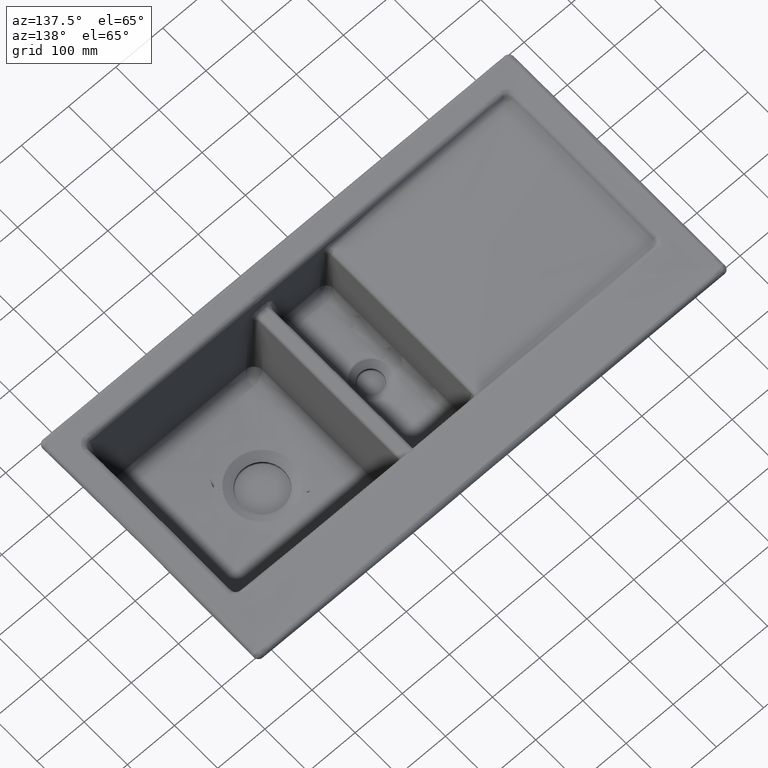
[diagram: clean part render]
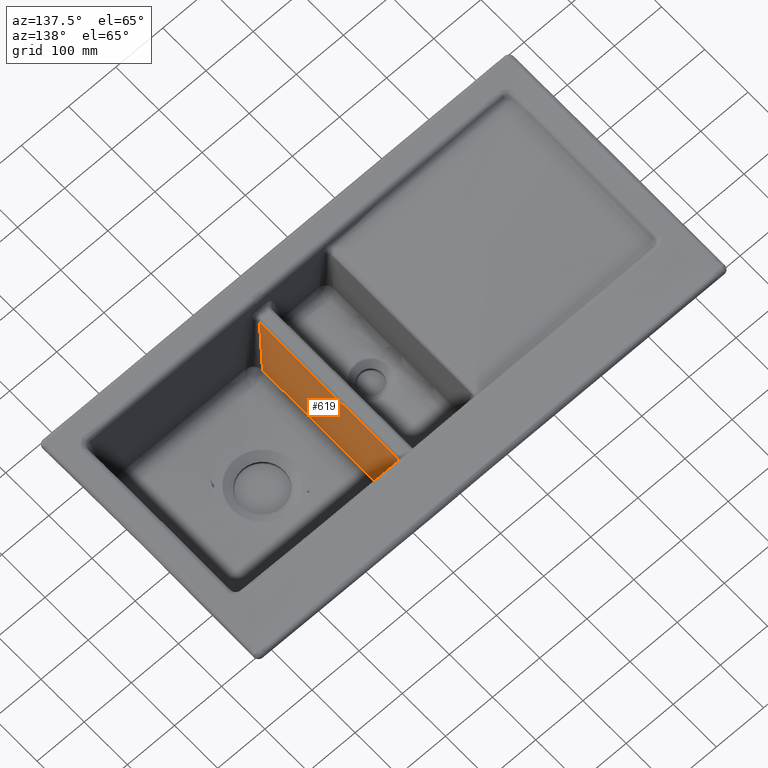
[diagram: same view with one face highlighted and labeled with its STEP entity id]
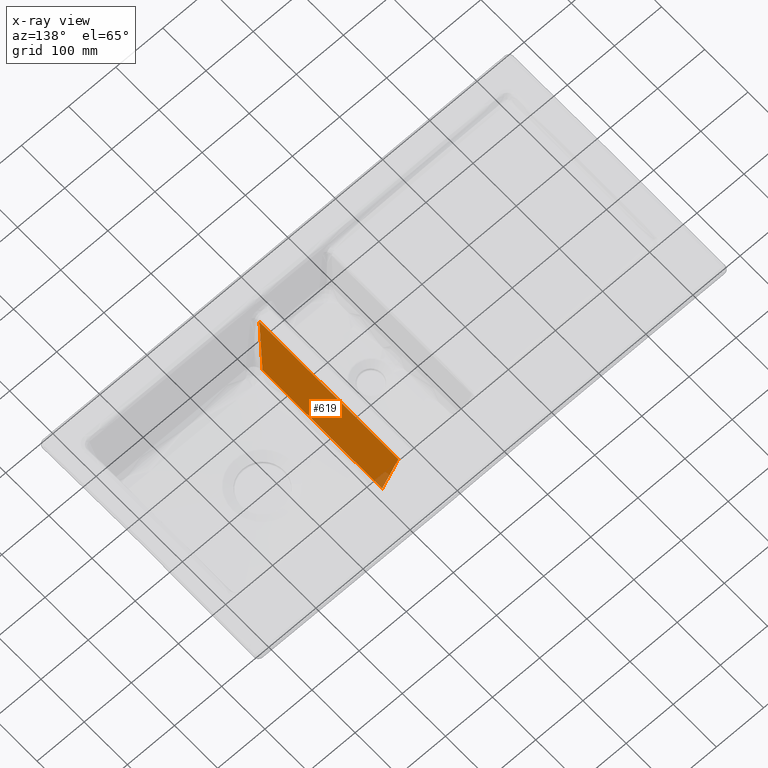
[diagram: x-ray of the same camera — body ghosted, the highlighted face saturated]
A machine part, auxiliary view. The second image highlights one B-rep face of the part: STEP entity #619.
The next image is the same camera in x-ray: the body ghosted, the highlighted face saturated — about 2% of this face is hidden behind the body in this view.
In plain terms, the highlighted planar face has unit normal (0.9945, 0, 0.1046).
Its self-contained STEP definition (entity closure, byte-faithful):
#64=LINE('',#8662,#82);
#65=LINE('',#8708,#83);
#66=LINE('',#8744,#84);
#82=VECTOR('',#6340,1.);
#83=VECTOR('',#6341,1.);
#84=VECTOR('',#6342,1.);
#141=PLANE('',#6174);
#619=ADVANCED_FACE('',(#1133),#141,.T.);
#1133=FACE_OUTER_BOUND('',#1532,.T.);
#1532=EDGE_LOOP('',(#2083,#2084,#2085,#2086,#2087,#2088));
#2083=ORIENTED_EDGE('',*,*,#4511,.T.);
#2084=ORIENTED_EDGE('',*,*,#4516,.T.);
#2085=ORIENTED_EDGE('',*,*,#4519,.T.);
#2086=ORIENTED_EDGE('',*,*,#4545,.F.);
#2087=ORIENTED_EDGE('',*,*,#4546,.F.);
#2088=ORIENTED_EDGE('',*,*,#4547,.F.);
#3906=VERTEX_POINT('',#8663);
#3907=VERTEX_POINT('',#8664);
#3909=VERTEX_POINT('',#8707);
#3911=VERTEX_POINT('',#8743);
#3927=VERTEX_POINT('',#9921);
#3928=VERTEX_POINT('',#9926);
#4511=EDGE_CURVE('',#3906,#3907,#64,.T.);
#4516=EDGE_CURVE('',#3907,#3909,#65,.T.);
#4519=EDGE_CURVE('',#3909,#3911,#66,.T.);
#4545=EDGE_CURVE('',#3927,#3911,#5479,.T.);
#4546=EDGE_CURVE('',#3928,#3927,#5480,.T.);
#4547=EDGE_CURVE('',#3906,#3928,#5481,.T.);
#5479=B_SPLINE_CURVE_WITH_KNOTS('',3,(#9917,#9918,#9919,#9920),
 .UNSPECIFIED.,.F.,.F.,(4,4),(0.,1.),.UNSPECIFIED.);
#5480=B_SPLINE_CURVE_WITH_KNOTS('',3,(#9922,#9923,#9924,#9925),
 .UNSPECIFIED.,.F.,.F.,(4,4),(0.,1.),.UNSPECIFIED.);
#5481=B_SPLINE_CURVE_WITH_KNOTS('',3,(#9927,#9928,#9929,#9930),
 .UNSPECIFIED.,.F.,.F.,(4,4),(0.,1.),.UNSPECIFIED.);
#6174=AXIS2_PLACEMENT_3D('',#9931,#6347,#6348);
#6340=DIRECTION('',(5.99029534644888E-5,0.999999835997403,-0.000569575984965933));
#6341=DIRECTION('',(5.99029534756079E-5,0.999999835997403,-0.000569575984953627));
#6342=DIRECTION('',(5.99029534644888E-5,0.999999835997403,-0.000569575984965933));
#6347=DIRECTION('',(0.994514976599627,0.,0.10459427001057));
#6348=DIRECTION('',(0.104199146335489,-0.086839443821827,-0.990758017327981));
#8662=CARTESIAN_POINT('',(104.075501914323,-5.98422724095791,-173.051583165526));
#8663=CARTESIAN_POINT('',(104.067630766378,-137.382533605321,-172.976741833269));
#8664=CARTESIAN_POINT('',(104.071120894094,-79.1195111693656,-173.009927057315));
#8707=CARTESIAN_POINT('',(104.080813212946,82.6808125389923,-173.102084651173));
#8708=CARTESIAN_POINT('',(104.07596705352,1.78065068481106,-173.056005854244));
#8743=CARTESIAN_POINT('',(104.084225954999,139.651983763955,-173.134534068174));
#8744=CARTESIAN_POINT('',(104.075501914323,-5.98422724095791,-173.051583165526));
#9917=CARTESIAN_POINT('',(90.8356824493695,162.788673432688,-47.1632458403535));
#9918=CARTESIAN_POINT('',(95.4438536388131,154.659244007978,-90.9791763131538));
#9919=CARTESIAN_POINT('',(99.8600348074782,146.947014118344,-132.969605723586));
#9920=CARTESIAN_POINT('',(104.084225955365,139.651983763785,-173.134534071652));
#9921=CARTESIAN_POINT('',(90.835674056923,162.788695732665,-47.1631660501734));
#9922=CARTESIAN_POINT('',(90.8356824493731,-158.956033427536,-47.163245840387));
#9923=CARTESIAN_POINT('',(90.8356824493731,-51.7077978074611,-47.163245840387));
#9924=CARTESIAN_POINT('',(90.8356824493731,55.5404378126135,-47.163245840387));
#9925=CARTESIAN_POINT('',(90.8356824493731,162.788673432688,-47.163245840387));
#9926=CARTESIAN_POINT('',(90.8356824553568,-158.95603341778,-47.1632458972817));
#9927=CARTESIAN_POINT('',(104.0676307664,-137.382533605302,-172.976741833481));
#9928=CARTESIAN_POINT('',(99.6570231803737,-144.57769317583,-131.039307787009));
#9929=CARTESIAN_POINT('',(95.2463691190776,-151.768418551439,-89.1014318391621));
#9930=CARTESIAN_POINT('',(90.8356824565535,-158.956033415829,-47.1632459086606));
#9931=CARTESIAN_POINT('',(114.478125013445,193.112545866867,-271.962971590085));